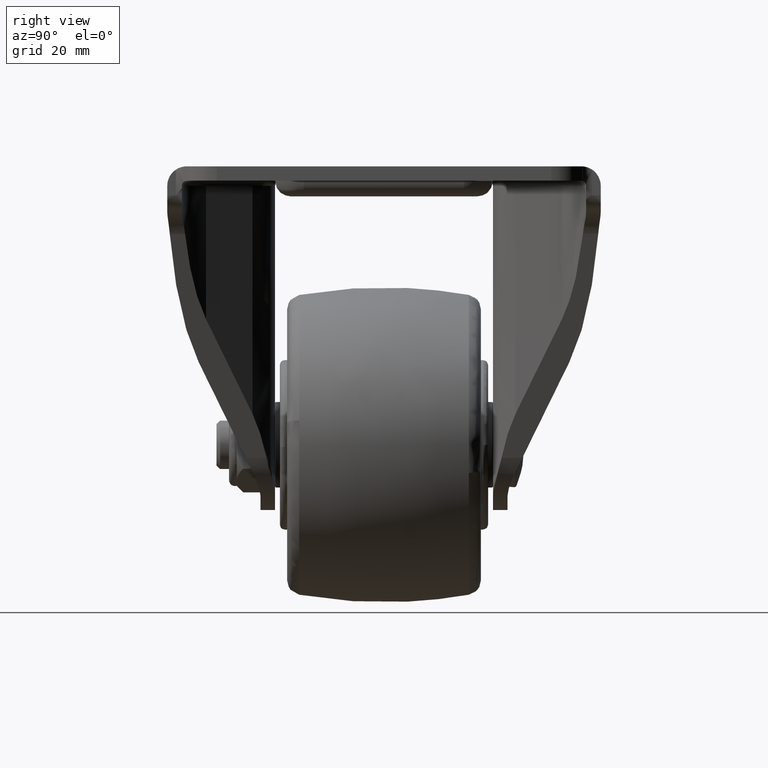
[diagram: clean part render]
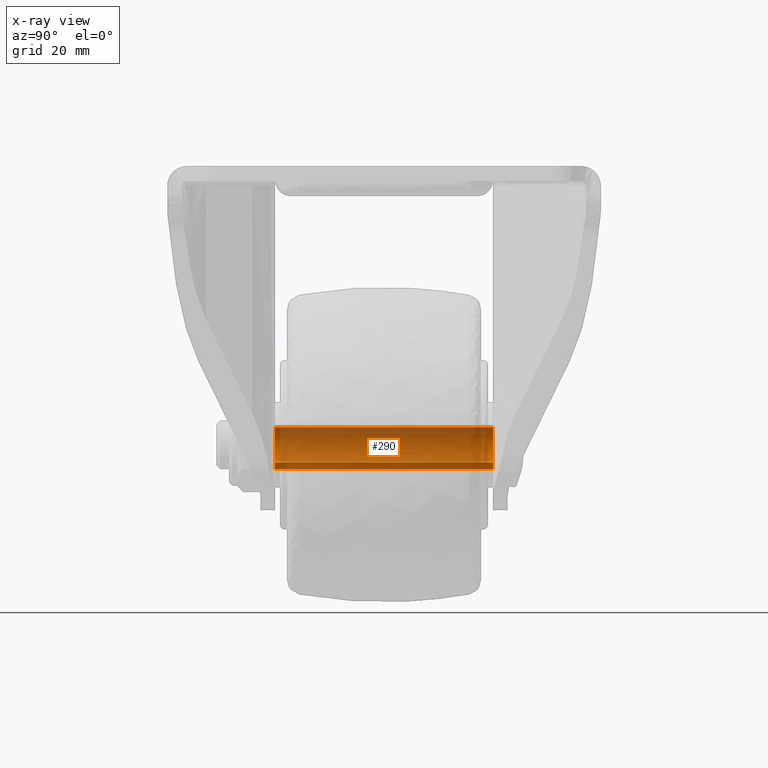
[diagram: x-ray — body ghosted, one internal face saturated and labeled with its STEP entity id]
A machine part, right view, then the same camera in x-ray: the body is ghosted and one INTERNAL B-rep face — a face not visible from any outside direction — is saturated and labeled: STEP entity #290.
In plain terms, the highlighted face is a freeform B-spline surface patch.
Its self-contained STEP definition (entity closure, byte-faithful):
#94=CARTESIAN_POINT('',(-3.441772553851746,22.499999999999730,3.626871640286833));
#95=VERTEX_POINT('',#94);
#105=CARTESIAN_POINT('',(-4.999999999999769,22.500000000000000,-0.000001519056149));
#106=VERTEX_POINT('',#105);
#107=CARTESIAN_POINT('',(-3.441772553851746,22.499999999999730,3.626871640286833));
#108=CARTESIAN_POINT('',(-3.733124938883400,22.499999999999751,3.350512111793748));
#109=CARTESIAN_POINT('',(-4.140076342353370,22.499999999999790,2.858313085257031));
#110=CARTESIAN_POINT('',(-4.587714628078061,22.499999999999851,2.040617547187377));
#111=CARTESIAN_POINT('',(-4.908305837919582,22.499999999999890,1.141225167171974));
#112=CARTESIAN_POINT('',(-5.000123138511950,22.500000000000039,0.422710540109535));
#113=CARTESIAN_POINT('',(-4.999999999999769,22.500000000000000,-0.000001519056149));
#114=B_SPLINE_CURVE_WITH_KNOTS('',3,(#107,#108,#109,#110,#111,#112,#113),.UNSPECIFIED.,.F.,.U.,(4,1,1,1,4),(0.000000041351341,1.204697517625985,1.902166830302942,2.789812833957379,4.057919150841054),.UNSPECIFIED.);
#115=EDGE_CURVE('',#95,#106,#114,.T.);
#117=CARTESIAN_POINT('',(0.0,22.500000000000000,-5.0));
#118=VERTEX_POINT('',#117);
#119=CARTESIAN_POINT('',(-4.999999999999769,22.500000000000000,-0.000001519056149));
#120=CARTESIAN_POINT('',(-5.000134993243636,22.499999999999972,-0.429526496753853));
#121=CARTESIAN_POINT('',(-4.907137949380079,22.500000000000000,-1.145301672613730));
#122=CARTESIAN_POINT('',(-4.499218278322981,22.500000000000011,-2.285779294883091));
#123=CARTESIAN_POINT('',(-3.901751116153937,22.499999999999972,-3.204327073522397));
#124=CARTESIAN_POINT('',(-3.168349923420438,22.500000000000011,-3.893665020700631));
#125=CARTESIAN_POINT('',(-2.492486543595065,22.499999999999950,-4.357355829562182));
#126=CARTESIAN_POINT('',(-1.492818444856662,22.500000000000060,-4.837998674417174));
#127=CARTESIAN_POINT('',(-0.593201574744892,22.499999999999979,-5.000404422425616));
#128=CARTESIAN_POINT('',(0.0,22.500000000000000,-5.0));
#129=B_SPLINE_CURVE_WITH_KNOTS('',3,(#119,#120,#121,#122,#123,#124,#125,#126,#127,#128),.UNSPECIFIED.,.F.,.U.,(4,1,1,1,1,1,1,4),(0.000000154766216,1.288536835320060,2.147591582199870,3.620226006778003,4.540607204596594,5.154203337924943,6.074604825986808,7.854030058217205),.UNSPECIFIED.);
#130=EDGE_CURVE('',#106,#118,#129,.T.);
#132=CARTESIAN_POINT('',(3.441772553851736,22.499999999999730,-3.626871640286824));
#133=VERTEX_POINT('',#132);
#134=CARTESIAN_POINT('',(0.0,22.500000000000000,-5.0));
#135=CARTESIAN_POINT('',(0.514096330036225,22.499999999999950,-5.000278518991506));
#136=CARTESIAN_POINT('',(1.364077552780993,22.499999999999961,-4.867654091118872));
#137=CARTESIAN_POINT('',(2.530863115929126,22.499999999999769,-4.361540767764163));
#138=CARTESIAN_POINT('',(3.140656041750786,22.499999999999812,-3.912744994509931));
#139=CARTESIAN_POINT('',(3.441772553851736,22.499999999999730,-3.626871640286824));
#140=B_SPLINE_CURVE_WITH_KNOTS('',3,(#134,#135,#136,#137,#138,#139),.UNSPECIFIED.,.F.,.U.,(4,1,1,4),(0.000000037931433,1.542186439284619,2.550508679067802,3.796113148953655),.UNSPECIFIED.);
#141=EDGE_CURVE('',#118,#133,#140,.T.);
#175=CARTESIAN_POINT('',(3.441772554592022,-22.500000000000000,-3.626871639584319));
#176=VERTEX_POINT('',#175);
#177=CARTESIAN_POINT('',(3.441772553851736,22.499999999999730,-3.626871640286824));
#178=CARTESIAN_POINT('',(3.441772554592022,-22.500000000000000,-3.626871639584319));
#179=QUASI_UNIFORM_CURVE('',1,(#177,#178),.UNSPECIFIED.,.F.,.U.);
#180=EDGE_CURVE('',#133,#176,#179,.T.);
#208=CARTESIAN_POINT('',(-3.441772554592031,-22.500000000000000,3.626871639584329));
#209=VERTEX_POINT('',#208);
#219=CARTESIAN_POINT('',(-3.441772553851746,22.499999999999730,3.626871640286833));
#220=CARTESIAN_POINT('',(-3.441772554592031,-22.500000000000000,3.626871639584329));
#221=QUASI_UNIFORM_CURVE('',1,(#219,#220),.UNSPECIFIED.,.F.,.U.);
#222=EDGE_CURVE('',#95,#209,#221,.T.);
#229=CARTESIAN_POINT('',(-3.441772878468769,23.625000000000000,3.626871855061437));
#230=CARTESIAN_POINT('',(-7.068644733530205,23.625000000000004,0.185098976592668));
#231=CARTESIAN_POINT('',(-3.626871855061437,23.625000000000000,-3.441772878468769));
#232=CARTESIAN_POINT('',(-0.185098976592668,23.625000000000004,-7.068644733530205));
#233=CARTESIAN_POINT('',(3.441772878468769,23.625000000000000,-3.626871855061437));
#234=CARTESIAN_POINT('',(-3.441772878468769,-23.653124999999999,3.626871855061437));
#235=CARTESIAN_POINT('',(-7.068644733530205,-23.653124999999989,0.185098976592668));
#236=CARTESIAN_POINT('',(-3.626871855061437,-23.653124999999999,-3.441772878468769));
#237=CARTESIAN_POINT('',(-0.185098976592668,-23.653124999999989,-7.068644733530205));
#238=CARTESIAN_POINT('',(3.441772878468769,-23.653124999999999,-3.626871855061437));
#246=(BOUNDED_SURFACE()B_SPLINE_SURFACE(2,1,((#229,#234),(#230,#235),(#231,#236),(#232,#237),(#233,#238)),.UNSPECIFIED.,.F.,.F.,.U.)B_SPLINE_SURFACE_WITH_KNOTS((3,2,3),(2,2),(0.0,8.284271247461897,16.568542494923790),(0.0,47.278125000000003),.UNSPECIFIED.)GEOMETRIC_REPRESENTATION_ITEM()RATIONAL_B_SPLINE_SURFACE(((1.0,1.0),(0.707106781186548,0.707106781186548),(1.0,1.0),(0.707106781186548,0.707106781186548),(1.0,1.0)))REPRESENTATION_ITEM('')SURFACE());
#247=ORIENTED_EDGE('',*,*,#141,.F.);
#248=ORIENTED_EDGE('',*,*,#130,.F.);
#249=ORIENTED_EDGE('',*,*,#115,.F.);
#250=ORIENTED_EDGE('',*,*,#222,.T.);
#251=CARTESIAN_POINT('',(-4.999999999999769,-22.500000000000000,-0.000001519056149));
#252=VERTEX_POINT('',#251);
#253=CARTESIAN_POINT('',(-3.441772554592031,-22.500000000000000,3.626871639584329));
#254=CARTESIAN_POINT('',(-3.871436861137063,-22.499999999999989,3.219829808262931));
#255=CARTESIAN_POINT('',(-4.468477674483265,-22.499999999999989,2.406433784522258));
#256=CARTESIAN_POINT('',(-4.917687549756770,-22.500000000000000,1.120131013576511));
#257=CARTESIAN_POINT('',(-5.000043585813907,-22.499999999999972,0.359292042172745));
#258=CARTESIAN_POINT('',(-4.999999999999769,-22.500000000000000,-0.000001519056149));
#259=B_SPLINE_CURVE_WITH_KNOTS('',3,(#253,#254,#255,#256,#257,#258),.UNSPECIFIED.,.F.,.U.,(4,1,1,4),(0.000000041351246,1.775359040038359,2.980033045869955,4.057919149820477),.UNSPECIFIED.);
#260=EDGE_CURVE('',#209,#252,#259,.T.);
#261=ORIENTED_EDGE('',*,*,#260,.T.);
#262=CARTESIAN_POINT('',(0.0,-22.500000000000000,-5.0));
#263=VERTEX_POINT('',#262);
#264=CARTESIAN_POINT('',(-4.999999999999769,-22.500000000000000,-0.000001519056149));
#265=CARTESIAN_POINT('',(-5.000134993243636,-22.499999999999972,-0.429526496753853));
#266=CARTESIAN_POINT('',(-4.907137949380079,-22.500000000000000,-1.145301672613730));
#267=CARTESIAN_POINT('',(-4.499218278322981,-22.500000000000011,-2.285779294883091));
#268=CARTESIAN_POINT('',(-3.901751116153937,-22.499999999999972,-3.204327073522397));
#269=CARTESIAN_POINT('',(-3.168349923420438,-22.500000000000011,-3.893665020700631));
#270=CARTESIAN_POINT('',(-2.492486543595065,-22.499999999999950,-4.357355829562182));
#271=CARTESIAN_POINT('',(-1.492818444856662,-22.500000000000060,-4.837998674417174));
#272=CARTESIAN_POINT('',(-0.593201574744892,-22.499999999999979,-5.000404422425616));
#273=CARTESIAN_POINT('',(0.0,-22.500000000000000,-5.0));
#274=B_SPLINE_CURVE_WITH_KNOTS('',3,(#264,#265,#266,#267,#268,#269,#270,#271,#272,#273),.UNSPECIFIED.,.F.,.U.,(4,1,1,1,1,1,1,4),(0.000000154766216,1.288536835320060,2.147591582199870,3.620226006778003,4.540607204596594,5.154203337924943,6.074604825986808,7.854030058217205),.UNSPECIFIED.);
#275=EDGE_CURVE('',#252,#263,#274,.T.);
#276=ORIENTED_EDGE('',*,*,#275,.T.);
#277=CARTESIAN_POINT('',(0.0,-22.500000000000000,-5.0));
#278=CARTESIAN_POINT('',(0.375663227476000,-22.499999999999961,-5.000078317898452));
#279=CARTESIAN_POINT('',(1.028072332792854,-22.500000000000039,-4.926106244575974));
#280=CARTESIAN_POINT('',(1.878720879167215,-22.499999999999972,-4.655083459100109));
#281=CARTESIAN_POINT('',(2.676921529521940,-22.500000000000082,-4.256983283939405));
#282=CARTESIAN_POINT('',(3.169328443339627,-22.499999999999961,-3.885517693308359));
#283=CARTESIAN_POINT('',(3.441772554592022,-22.500000000000000,-3.626871639584319));
#284=B_SPLINE_CURVE_WITH_KNOTS('',3,(#277,#278,#279,#280,#281,#282,#283),.UNSPECIFIED.,.F.,.U.,(4,1,1,1,4),(0.000000037931797,1.126975135407735,1.957346594584109,2.669138052533404,3.796113149974227),.UNSPECIFIED.);
#285=EDGE_CURVE('',#263,#176,#284,.T.);
#286=ORIENTED_EDGE('',*,*,#285,.T.);
#287=ORIENTED_EDGE('',*,*,#180,.F.);
#288=EDGE_LOOP('',(#247,#248,#249,#250,#261,#276,#286,#287));
#289=FACE_OUTER_BOUND('',#288,.T.);
#290=ADVANCED_FACE('',(#289),#246,.F.);